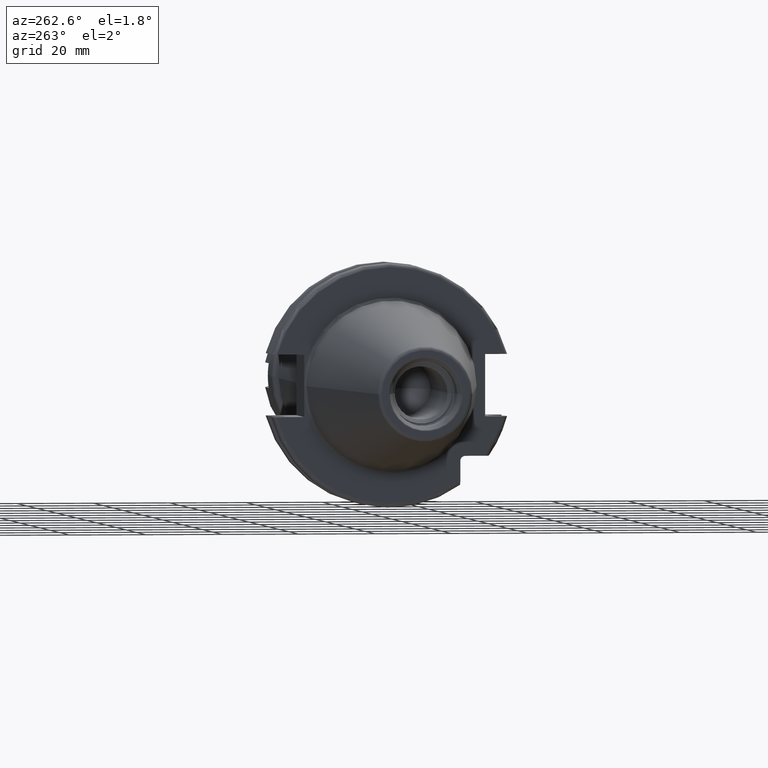
[diagram: clean part render]
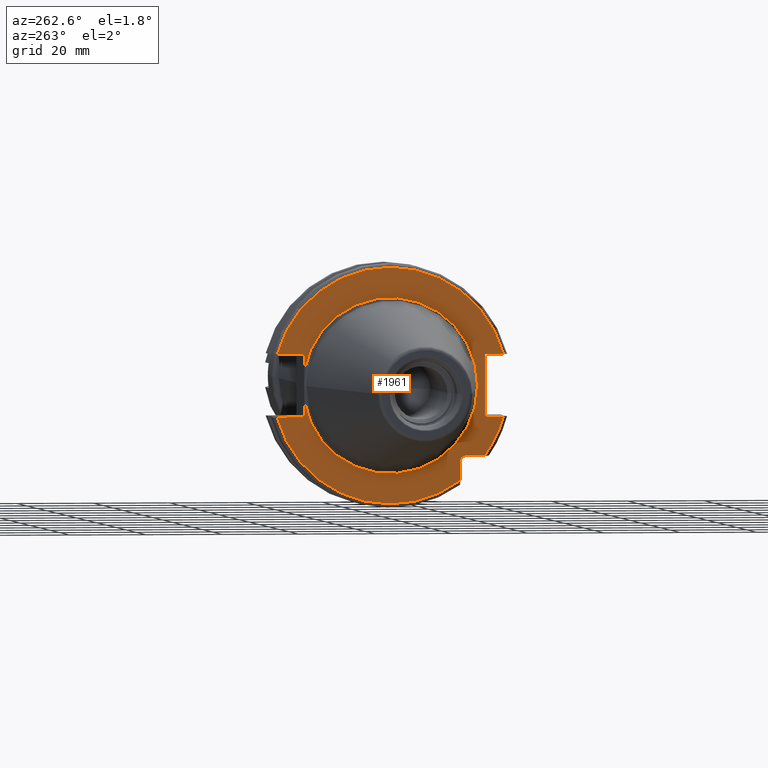
[diagram: same view with one face highlighted and labeled with its STEP entity id]
A machine part, auxiliary view. The second image highlights one B-rep face of the part: STEP entity #1961.
In plain terms, the highlighted planar face has unit normal (1, 0, 0).
Its self-contained STEP definition (entity closure, byte-faithful):
#117=CARTESIAN_POINT('',(3.2E0,0.E0,0.E0));
#118=DIRECTION('',(-1.E0,0.E0,0.E0));
#119=DIRECTION('',(0.E0,9.857923497268E-1,-1.679685780739E-1));
#120=AXIS2_PLACEMENT_3D('',#117,#118,#119);
#357=DIRECTION('',(0.E0,-1.E0,0.E0));
#358=VECTOR('',#357,4.990259339464E0);
#359=CARTESIAN_POINT('',(3.2E0,-1.97E1,-1.835E1));
#360=LINE('',#359,#358);
#361=DIRECTION('',(0.E0,0.E0,1.E0));
#362=VECTOR('',#361,4.990259339464E0);
#363=CARTESIAN_POINT('',(3.2E0,-1.835E1,-2.469025933946E1));
#364=LINE('',#363,#362);
#365=CARTESIAN_POINT('',(3.2E0,0.E0,0.E0));
#366=DIRECTION('',(-1.E0,0.E0,0.E0));
#367=DIRECTION('',(0.E0,9.647119303464E-1,-2.633075985372E-1));
#368=AXIS2_PLACEMENT_3D('',#365,#366,#367);
#370=DIRECTION('',(0.E0,-1.E0,0.E0));
#371=VECTOR('',#370,7.126950757280E0);
#372=CARTESIAN_POINT('',(3.2E0,2.967695075728E1,-8.1E0));
#373=LINE('',#372,#371);
#374=DIRECTION('',(0.E0,0.E0,-1.E0));
#375=VECTOR('',#374,4.257718776560E0);
#376=CARTESIAN_POINT('',(3.2E0,2.255E1,-3.842281223440E0));
#377=LINE('',#376,#375);
#378=DIRECTION('',(0.E0,0.E0,-1.E0));
#379=VECTOR('',#378,4.257718776560E0);
#380=CARTESIAN_POINT('',(3.2E0,2.255E1,8.1E0));
#381=LINE('',#380,#379);
#382=DIRECTION('',(0.E0,-1.E0,0.E0));
#383=VECTOR('',#382,7.126950757280E0);
#384=CARTESIAN_POINT('',(3.2E0,2.967695075728E1,8.1E0));
#385=LINE('',#384,#383);
#386=CARTESIAN_POINT('',(3.2E0,0.E0,0.E0));
#387=DIRECTION('',(1.E0,0.E0,0.E0));
#388=DIRECTION('',(0.E0,9.647119303464E-1,2.633075985372E-1));
#389=AXIS2_PLACEMENT_3D('',#386,#387,#388);
#391=DIRECTION('',(0.E0,1.E0,0.E0));
#392=VECTOR('',#391,4.826950757280E0);
#393=CARTESIAN_POINT('',(3.2E0,-2.967695075728E1,8.1E0));
#394=LINE('',#393,#392);
#395=DIRECTION('',(0.E0,0.E0,1.E0));
#396=VECTOR('',#395,1.62E1);
#397=CARTESIAN_POINT('',(3.2E0,-2.485E1,-8.1E0));
#398=LINE('',#397,#396);
#399=DIRECTION('',(0.E0,1.E0,0.E0));
#400=VECTOR('',#399,4.826950757280E0);
#401=CARTESIAN_POINT('',(3.2E0,-2.967695075728E1,-8.1E0));
#402=LINE('',#401,#400);
#403=CARTESIAN_POINT('',(3.2E0,0.E0,0.E0));
#404=DIRECTION('',(-1.E0,0.E0,0.E0));
#405=DIRECTION('',(0.E0,-8.026089992512E-1,-5.965054855750E-1));
#406=AXIS2_PLACEMENT_3D('',#403,#404,#405);
#417=CARTESIAN_POINT('',(3.2E0,-1.97E1,-1.97E1));
#418=DIRECTION('',(1.E0,0.E0,0.E0));
#419=DIRECTION('',(0.E0,1.E0,0.E0));
#420=AXIS2_PLACEMENT_3D('',#417,#418,#419);
#1077=CARTESIAN_POINT('',(3.2E0,0.E0,0.E0));
#1078=DIRECTION('',(1.E0,0.E0,0.E0));
#1079=DIRECTION('',(0.E0,9.857923497268E-1,1.679685780739E-1));
#1080=AXIS2_PLACEMENT_3D('',#1077,#1078,#1079);
#1300=CARTESIAN_POINT('',(3.2E0,-2.2875E1,0.E0));
#1302=VERTEX_POINT('',#1300);
#1442=CARTESIAN_POINT('',(3.2E0,2.967695075728E1,8.1E0));
#1443=CARTESIAN_POINT('',(3.2E0,2.255E1,8.1E0));
#1444=VERTEX_POINT('',#1442);
#1445=VERTEX_POINT('',#1443);
#1446=CARTESIAN_POINT('',(3.2E0,2.255E1,3.842281223440E0));
#1447=VERTEX_POINT('',#1446);
#1448=CARTESIAN_POINT('',(3.2E0,2.255E1,-3.842281223440E0));
#1449=CARTESIAN_POINT('',(3.2E0,2.255E1,-8.1E0));
#1450=VERTEX_POINT('',#1448);
#1451=VERTEX_POINT('',#1449);
#1452=CARTESIAN_POINT('',(3.2E0,2.967695075728E1,-8.1E0));
#1453=VERTEX_POINT('',#1452);
#1454=CARTESIAN_POINT('',(3.2E0,-2.967695075728E1,-8.1E0));
#1455=CARTESIAN_POINT('',(3.2E0,-2.485E1,-8.1E0));
#1456=VERTEX_POINT('',#1454);
#1457=VERTEX_POINT('',#1455);
#1458=CARTESIAN_POINT('',(3.2E0,-2.485E1,8.1E0));
#1459=VERTEX_POINT('',#1458);
#1460=CARTESIAN_POINT('',(3.2E0,-2.967695075728E1,8.1E0));
#1461=VERTEX_POINT('',#1460);
#1487=CARTESIAN_POINT('',(3.2E0,-1.835E1,-2.469025933946E1));
#1488=VERTEX_POINT('',#1487);
#1495=CARTESIAN_POINT('',(3.2E0,-1.97E1,-1.835E1));
#1496=CARTESIAN_POINT('',(3.2E0,-2.469025933946E1,-1.835E1));
#1497=VERTEX_POINT('',#1495);
#1498=VERTEX_POINT('',#1496);
#1499=CARTESIAN_POINT('',(3.2E0,-1.835E1,-1.97E1));
#1500=VERTEX_POINT('',#1499);
#1930=CARTESIAN_POINT('',(3.2E0,0.E0,0.E0));
#1931=DIRECTION('',(1.E0,0.E0,0.E0));
#1932=DIRECTION('',(0.E0,-1.E0,0.E0));
#1933=AXIS2_PLACEMENT_3D('',#1930,#1931,#1932);
#1934=PLANE('',#1933);
#1936=ORIENTED_EDGE('',*,*,#1935,.F.);
#1938=ORIENTED_EDGE('',*,*,#1937,.F.);
#1940=ORIENTED_EDGE('',*,*,#1939,.F.);
#1941=ORIENTED_EDGE('',*,*,#1907,.F.);
#1942=ORIENTED_EDGE('',*,*,#1733,.T.);
#1943=ORIENTED_EDGE('',*,*,#1720,.F.);
#1944=ORIENTED_EDGE('',*,*,#1697,.T.);
#1946=ORIENTED_EDGE('',*,*,#1945,.F.);
#1947=ORIENTED_EDGE('',*,*,#1715,.F.);
#1949=ORIENTED_EDGE('',*,*,#1948,.F.);
#1951=ORIENTED_EDGE('',*,*,#1950,.T.);
#1953=ORIENTED_EDGE('',*,*,#1952,.T.);
#1955=ORIENTED_EDGE('',*,*,#1954,.F.);
#1957=ORIENTED_EDGE('',*,*,#1956,.F.);
#1958=ORIENTED_EDGE('',*,*,#1925,.F.);
#1959=EDGE_LOOP('',(#1936,#1938,#1940,#1941,#1942,#1943,#1944,#1946,#1947,#1949,
#1951,#1953,#1955,#1957,#1958));
#1960=FACE_OUTER_BOUND('',#1959,.F.);
#1961=ADVANCED_FACE('',(#1960),#1934,.F.);
#121=CIRCLE('',#120,2.2875E1);
#369=CIRCLE('',#368,3.07625E1);
#390=CIRCLE('',#389,3.07625E1);
#407=CIRCLE('',#406,3.07625E1);
#421=CIRCLE('',#420,1.35E0);
#1081=CIRCLE('',#1080,2.2875E1);
#1697=EDGE_CURVE('',#1450,#1302,#121,.T.);
#1715=EDGE_CURVE('',#1445,#1447,#381,.T.);
#1720=EDGE_CURVE('',#1450,#1451,#377,.T.);
#1733=EDGE_CURVE('',#1453,#1451,#373,.T.);
#1907=EDGE_CURVE('',#1453,#1488,#369,.T.);
#1925=EDGE_CURVE('',#1498,#1456,#407,.T.);
#1935=EDGE_CURVE('',#1497,#1498,#360,.T.);
#1937=EDGE_CURVE('',#1500,#1497,#421,.T.);
#1939=EDGE_CURVE('',#1488,#1500,#364,.T.);
#1945=EDGE_CURVE('',#1447,#1302,#1081,.T.);
#1948=EDGE_CURVE('',#1444,#1445,#385,.T.);
#1950=EDGE_CURVE('',#1444,#1461,#390,.T.);
#1952=EDGE_CURVE('',#1461,#1459,#394,.T.);
#1954=EDGE_CURVE('',#1457,#1459,#398,.T.);
#1956=EDGE_CURVE('',#1456,#1457,#402,.T.);